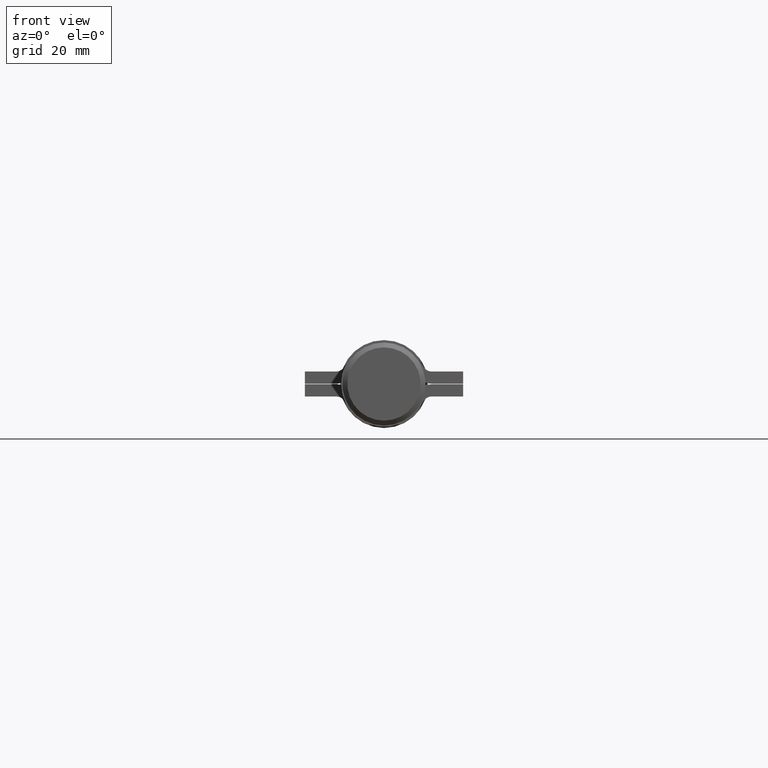
[diagram: clean part render]
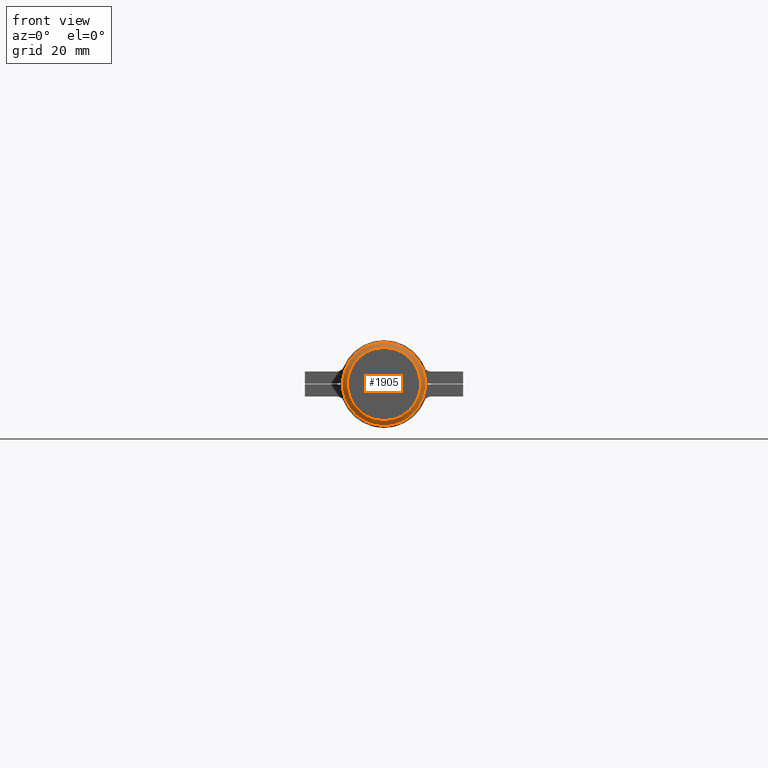
[diagram: same view with one face highlighted and labeled with its STEP entity id]
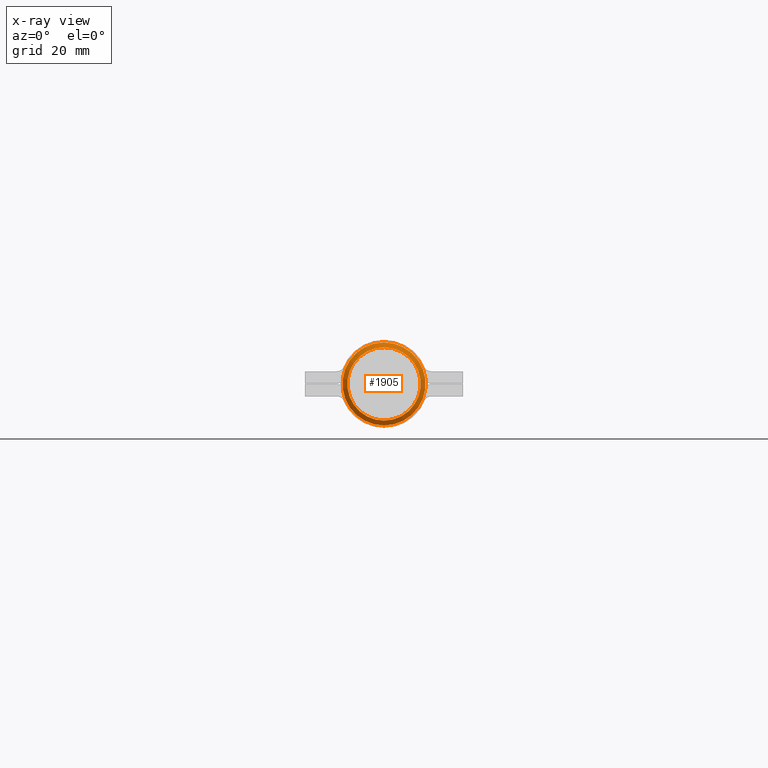
[diagram: x-ray of the same camera — body ghosted, the highlighted face saturated]
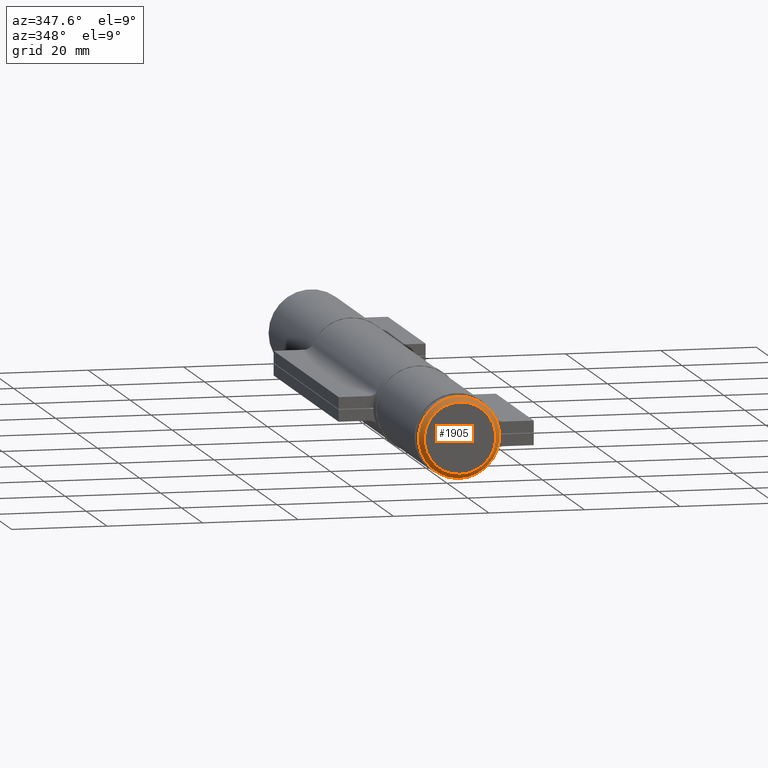
[diagram: same view with one face highlighted and labeled with its STEP entity id]
A machine part, front view. The second image highlights one B-rep face of the part: STEP entity #1905.
The next image is the same camera in x-ray: the body ghosted, the highlighted face saturated — about 0% of this face is hidden behind the body in this view.
A second angle (auxiliary view) of the same face is appended — the face is thin or edge-on in the first view.
In plain terms, the highlighted conical surface has half-angle 45 deg.
Its self-contained STEP definition (entity closure, byte-faithful):
#575 = AXIS2_PLACEMENT_3D ( 'NONE', #3064, #6680, #5796 ) ;
#935 = DIRECTION ( 'NONE',  ( 0.000000000000000000, 0.000000000000000000, 1.000000000000000000 ) ) ;
#1146 = VERTEX_POINT ( 'NONE', #10118 ) ;
#1229 = AXIS2_PLACEMENT_3D ( 'NONE', #2759, #5640, #935 ) ;
#1231 = FACE_OUTER_BOUND ( 'NONE', #11205, .T. ) ;
#1375 = EDGE_CURVE ( 'NONE', #1146, #1146, #3945, .T. ) ;
#1702 = CIRCLE ( 'NONE', #575, 7.500000000000020428 ) ;
#1905 = ADVANCED_FACE ( 'NONE', ( #5933, #1231 ), #11614, .T. ) ;
#2044 = EDGE_CURVE ( 'NONE', #10223, #10223, #1702, .T. ) ;
#2759 = CARTESIAN_POINT ( 'NONE',  ( 1.769614624767925100E-14, -71.50000000000000000, 0.000000000000000000 ) ) ;
#3064 = CARTESIAN_POINT ( 'NONE',  ( 1.769614624767925100E-14, -72.50000000000000000, 0.000000000000000000 ) ) ;
#3546 = DIRECTION ( 'NONE',  ( -0.000000000000000000, 1.000000000000000000, -0.000000000000000000 ) ) ;
#3903 = CARTESIAN_POINT ( 'NONE',  ( 1.769614624767925100E-14, -72.50000000000000000, 7.500000000000020428 ) ) ;
#3945 = CIRCLE ( 'NONE', #1229, 8.500000000000000000 ) ;
#5640 = DIRECTION ( 'NONE',  ( -0.000000000000000000, 1.000000000000000000, -0.000000000000000000 ) ) ;
#5796 = DIRECTION ( 'NONE',  ( 0.000000000000000000, 0.000000000000000000, 1.000000000000000000 ) ) ;
#5933 = FACE_BOUND ( 'NONE', #7461, .T. ) ;
#6680 = DIRECTION ( 'NONE',  ( 0.000000000000000000, -1.000000000000000000, 0.000000000000000000 ) ) ;
#7011 = DIRECTION ( 'NONE',  ( 0.000000000000000000, 0.000000000000000000, 1.000000000000000000 ) ) ;
#7461 = EDGE_LOOP ( 'NONE', ( #10296 ) ) ;
#8531 = AXIS2_PLACEMENT_3D ( 'NONE', #10752, #3546, #7011 ) ;
#10118 = CARTESIAN_POINT ( 'NONE',  ( 1.769614624767925100E-14, -71.50000000000000000, 8.500000000000000000 ) ) ;
#10223 = VERTEX_POINT ( 'NONE', #3903 ) ;
#10296 = ORIENTED_EDGE ( 'NONE', *, *, #2044, .F. ) ;
#10621 = ORIENTED_EDGE ( 'NONE', *, *, #1375, .F. ) ;
#10752 = CARTESIAN_POINT ( 'NONE',  ( 1.769614624767925100E-14, -71.50000000000000000, 0.000000000000000000 ) ) ;
#11205 = EDGE_LOOP ( 'NONE', ( #10621 ) ) ;
#11614 = CONICAL_SURFACE ( 'NONE', #8531, 8.500000000000000000, 0.7853981633974378429 ) ;